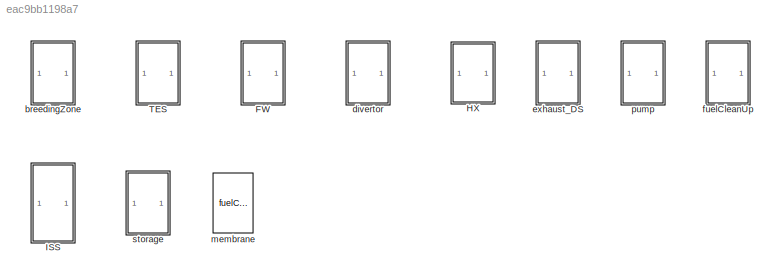
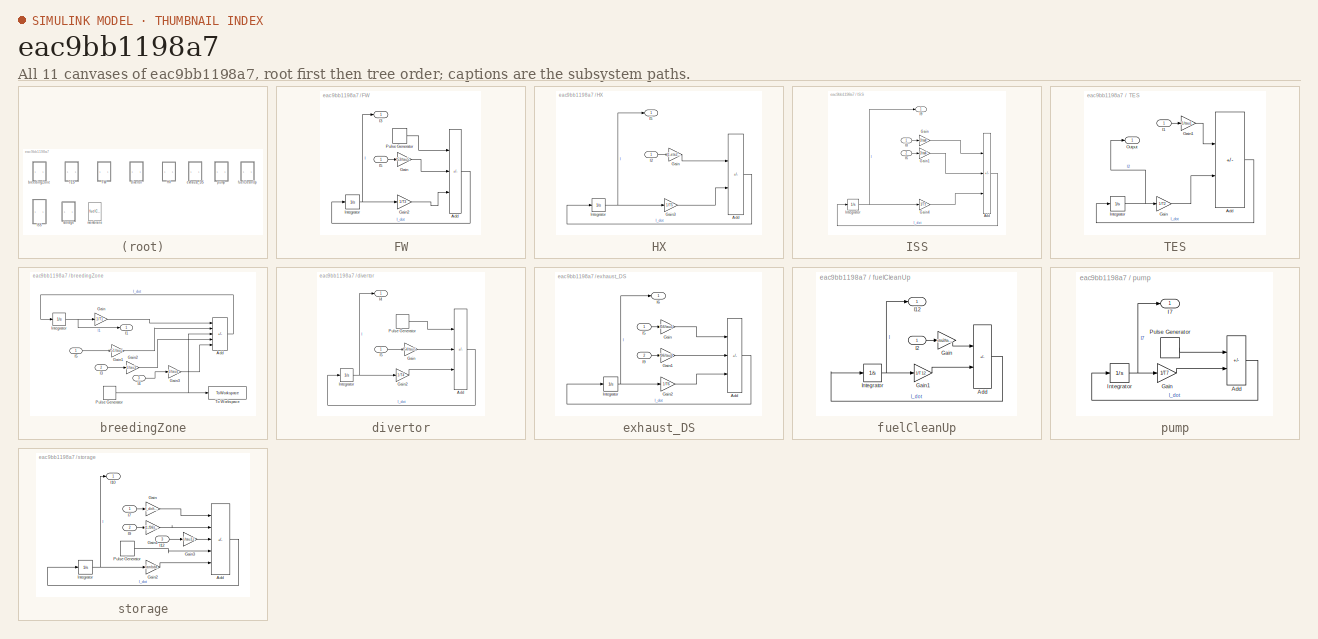
[diagram: thumbnail index - all 11 canvases of the model, root first then tree order]
MODEL slx_eac9bb1198a7
KIND library
CONFIG AbsTol = auto
CONFIG EnableMultiTasking = off
CONFIG FixedStep = auto
CONFIG MaxStep = auto
CONFIG MinStep = auto
CONFIG RelTol = 1e-3
CONFIG SampleTimeConstraint = Unconstrained
CONFIG SolverName = VariableStepAuto
CONFIG StartTime = 0.0
CONFIG StopTime = 10.0
BLOCK [SubSystem] FW
  LibrarySourceBlock = arc/FW_3
BLOCK [Sum] FW/Add
  IconShape = rectangular
  Inputs = ++-
BLOCK [Gain] FW/Gain
  Gain = f53/tau5
BLOCK [Gain] FW/Gain2
  Gain = 1/T3
BLOCK [Outport] FW/I3
BLOCK [Inport] FW/I5
BLOCK [Integrator] FW/Integrator
BLOCK [DiscretePulseGenerator] FW/Pulse Generator
  Amplitude = fp3*N_dot/TBE
  Period = 1800
  PulseType = Time based
  PulseWidth = AF
BLOCK [SubSystem] HX
BLOCK [Sum] HX/Add
  IconShape = rectangular
  Inputs = +-
BLOCK [Gain] HX/Gain
  Gain = (1-eta2)/tau2
BLOCK [Gain] HX/Gain3
  Gain = 1/T5
BLOCK [Inport] HX/I2
BLOCK [Outport] HX/I5
BLOCK [Integrator] HX/Integrator
BLOCK [SubSystem] ISS
  LibrarySourceBlock = arc/ISS_9
BLOCK [Sum] ISS/Add
  IconShape = rectangular
  Inputs = ++-
BLOCK [Gain] ISS/Gain
  Gain = 1/tau8
BLOCK [Gain] ISS/Gain1
  Gain = 1/tau6
BLOCK [Gain] ISS/Gain4
  Gain = 1/T9
BLOCK [Inport] ISS/I6
  Port = 2
BLOCK [Inport] ISS/I8
BLOCK [Outport] ISS/I9
BLOCK [Integrator] ISS/Integrator
BLOCK [SubSystem] TES
  LibrarySourceBlock = arc/TES_2
BLOCK [Sum] TES/Add
  IconShape = rectangular
  Inputs = +-
BLOCK [Gain] TES/Gain
  Gain = 1/T2
BLOCK [Gain] TES/Gain1
  Gain = 1/tau1
BLOCK [Inport] TES/I1
BLOCK [Integrator] TES/Integrator
BLOCK [Outport] TES/Output
  IconDisplay = Signal name
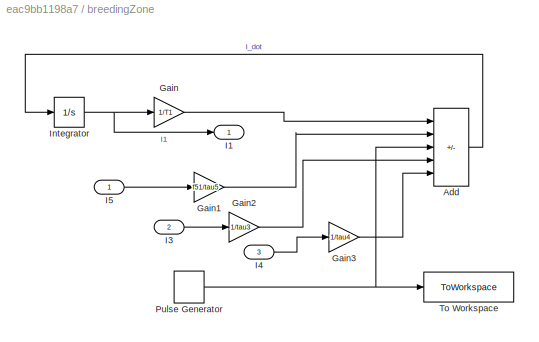
BLOCK [SubSystem] breedingZone
  LibrarySourceBlock = arc/breedingZone_1
BLOCK [Sum] breedingZone/Add
  IconShape = rectangular
  Inputs = -++++
BLOCK [Gain] breedingZone/Gain
  Gain = 1/T1
BLOCK [Gain] breedingZone/Gain1
  Gain = f51/tau5
BLOCK [Gain] breedingZone/Gain2
  Gain = 1/tau3
BLOCK [Gain] breedingZone/Gain3
  Gain = 1/tau4
BLOCK [Outport] breedingZone/I1
  IconDisplay = Signal name
BLOCK [Inport] breedingZone/I3
  IconDisplay = Signal name
  Port = 2
BLOCK [Inport] breedingZone/I4
  IconDisplay = Signal name
  Port = 3
BLOCK [Inport] breedingZone/I5
  IconDisplay = Signal name
BLOCK [Integrator] breedingZone/Integrator
BLOCK [DiscretePulseGenerator] breedingZone/Pulse Generator
  Amplitude = N_dot * TBR
  Period = 1800
  PulseType = Time based
  PulseWidth = AF
BLOCK [ToWorkspace] breedingZone/To Workspace
  FixptAsFi = on
  MaxDataPoints = inf
  SampleTime = -1
  SaveFormat = Timeseries
  VariableName = T_generation
BLOCK [SubSystem] divertor
  LibrarySourceBlock = arc/divertor_4
BLOCK [Sum] divertor/Add
  IconShape = rectangular
  Inputs = ++-
BLOCK [Gain] divertor/Gain
  Gain = f54/tau5
BLOCK [Gain] divertor/Gain2
  Gain = 1/T4
BLOCK [Outport] divertor/I4
BLOCK [Inport] divertor/I5
BLOCK [Integrator] divertor/Integrator
BLOCK [DiscretePulseGenerator] divertor/Pulse Generator
  Amplitude = fp4*N_dot/TBE
  Period = 1800
  PulseType = Time based
  PulseWidth = AF
BLOCK [SubSystem] exhaust_DS
BLOCK [Sum] exhaust_DS/Add
  IconShape = rectangular
  Inputs = ++-
BLOCK [Gain] exhaust_DS/Gain
  Gain = f56/tau5
BLOCK [Gain] exhaust_DS/Gain1
  Gain = f96/tau9
BLOCK [Gain] exhaust_DS/Gain2
  Gain = 1/T6
BLOCK [Inport] exhaust_DS/I5
BLOCK [Outport] exhaust_DS/I6
BLOCK [Inport] exhaust_DS/I9
  Port = 2
BLOCK [Integrator] exhaust_DS/Integrator
BLOCK [SubSystem] fuelCleanUp
  LibrarySourceBlock = arc/fuelCleanUp_8
BLOCK [Sum] fuelCleanUp/Add
  IconShape = rectangular
  Inputs = +-
BLOCK [Gain] fuelCleanUp/Gain
  Gain = eta2/tau2
BLOCK [Gain] fuelCleanUp/Gain1
  Gain = 1/T12
BLOCK [Outport] fuelCleanUp/I12
BLOCK [Inport] fuelCleanUp/I2
BLOCK [Integrator] fuelCleanUp/Integrator
BLOCK [Reference] membrane  REF=$bdroot/fuelCleanUp_8
  LibrarySourceBlock = arc/fuelCleanUp_8
  SourceBlock = $bdroot/fuelCleanUp_8
  SourceType = SubSystem
BLOCK [SubSystem] pump
  LibrarySourceBlock = arc/pump_7
BLOCK [Sum] pump/Add
  IconShape = rectangular
  Inputs = +-
BLOCK [Gain] pump/Gain
  Gain = 1/T7
BLOCK [Outport] pump/I7
  IconDisplay = Signal name
BLOCK [Integrator] pump/Integrator
BLOCK [DiscretePulseGenerator] pump/Pulse Generator
  Amplitude = (1-TBE-fp3-fp4)*N_dot/TBE
  Period = 1800
  PulseType = Time based
  PulseWidth = AF
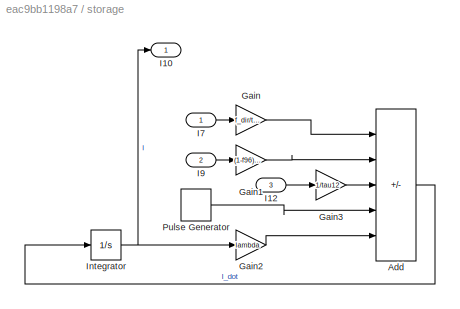
BLOCK [SubSystem] storage
  LibrarySourceBlock = arc/storage_10
BLOCK [Sum] storage/Add
  IconShape = rectangular
  Inputs = +++--
BLOCK [Gain] storage/Gain
  Gain = f_dir/tau7
BLOCK [Gain] storage/Gain1
  Gain = (1-f96)/tau9
BLOCK [Gain] storage/Gain2
  Gain = lambda
BLOCK [Gain] storage/Gain3
  Gain = 1/tau12
BLOCK [Outport] storage/I10
BLOCK [Inport] storage/I12
  Port = 3
BLOCK [Inport] storage/I7
BLOCK [Inport] storage/I9
  Port = 2
BLOCK [Integrator] storage/Integrator
  InitialCondition = I_s_0
BLOCK [DiscretePulseGenerator] storage/Pulse Generator
  Amplitude = N_dot/TBE
  Period = 1800
  PulseType = Time based
  PulseWidth = AF
LINE FW/Add:1 -> FW/Integrator:1
LINE FW/Gain2:1 -> FW/Add:3
LINE FW/Gain:1 -> FW/Add:2
LINE FW/I5:1 -> FW/Gain:1
NET FW/Integrator:1 -> FW/Gain2:1, FW/I3:1
LINE FW/Pulse Generator:1 -> FW/Add:1
LINE HX/Add:1 -> HX/Integrator:1
LINE HX/Gain3:1 -> HX/Add:2
LINE HX/Gain:1 -> HX/Add:1
LINE HX/I2:1 -> HX/Gain:1
NET HX/Integrator:1 -> HX/Gain3:1, HX/I5:1
LINE ISS/Add:1 -> ISS/Integrator:1
LINE ISS/Gain1:1 -> ISS/Add:2
LINE ISS/Gain4:1 -> ISS/Add:3
LINE ISS/Gain:1 -> ISS/Add:1
LINE ISS/I6:1 -> ISS/Gain1:1
LINE ISS/I8:1 -> ISS/Gain:1
NET ISS/Integrator:1 -> ISS/Gain4:1, ISS/I9:1
LINE TES/Add:1 -> TES/Integrator:1
LINE TES/Gain1:1 -> TES/Add:1
LINE TES/Gain:1 -> TES/Add:2
LINE TES/I1:1 -> TES/Gain1:1
NET TES/Integrator:1 -> TES/Gain:1, TES/Output:1
LINE breedingZone/Add:1 -> breedingZone/Integrator:1
LINE breedingZone/Gain1:1 -> breedingZone/Add:2
LINE breedingZone/Gain2:1 -> breedingZone/Add:4
LINE breedingZone/Gain3:1 -> breedingZone/Add:5
LINE breedingZone/Gain:1 -> breedingZone/Add:1
LINE breedingZone/I3:1 -> breedingZone/Gain2:1
LINE breedingZone/I4:1 -> breedingZone/Gain3:1
LINE breedingZone/I5:1 -> breedingZone/Gain1:1
NET breedingZone/Integrator:1 -> breedingZone/Gain:1, breedingZone/I1:1
NET breedingZone/Pulse Generator:1 -> breedingZone/Add:3, breedingZone/To Workspace:1
LINE divertor/Add:1 -> divertor/Integrator:1
LINE divertor/Gain2:1 -> divertor/Add:3
LINE divertor/Gain:1 -> divertor/Add:2
LINE divertor/I5:1 -> divertor/Gain:1
NET divertor/Integrator:1 -> divertor/Gain2:1, divertor/I4:1
LINE divertor/Pulse Generator:1 -> divertor/Add:1
LINE exhaust_DS/Add:1 -> exhaust_DS/Integrator:1
LINE exhaust_DS/Gain1:1 -> exhaust_DS/Add:2
LINE exhaust_DS/Gain2:1 -> exhaust_DS/Add:3
LINE exhaust_DS/Gain:1 -> exhaust_DS/Add:1
LINE exhaust_DS/I5:1 -> exhaust_DS/Gain:1
LINE exhaust_DS/I9:1 -> exhaust_DS/Gain1:1
NET exhaust_DS/Integrator:1 -> exhaust_DS/Gain2:1, exhaust_DS/I6:1
LINE fuelCleanUp/Add:1 -> fuelCleanUp/Integrator:1
LINE fuelCleanUp/Gain1:1 -> fuelCleanUp/Add:2
LINE fuelCleanUp/Gain:1 -> fuelCleanUp/Add:1
LINE fuelCleanUp/I2:1 -> fuelCleanUp/Gain:1
NET fuelCleanUp/Integrator:1 -> fuelCleanUp/Gain1:1, fuelCleanUp/I12:1
LINE pump/Add:1 -> pump/Integrator:1
LINE pump/Gain:1 -> pump/Add:2
NET pump/Integrator:1 -> pump/Gain:1, pump/I7:1
LINE pump/Pulse Generator:1 -> pump/Add:1
LINE storage/Add:1 -> storage/Integrator:1
LINE storage/Gain1:1 -> storage/Add:2
LINE storage/Gain2:1 -> storage/Add:5
LINE storage/Gain3:1 -> storage/Add:3
LINE storage/Gain:1 -> storage/Add:1
LINE storage/I12:1 -> storage/Gain3:1
LINE storage/I7:1 -> storage/Gain:1
LINE storage/I9:1 -> storage/Gain1:1
NET storage/Integrator:1 -> storage/Gain2:1, storage/I10:1
LINE storage/Pulse Generator:1 -> storage/Add:4
note: NET lines group one-source signal fan-out (src -> all destinations, sorted); 1:1 wires keep LINE
